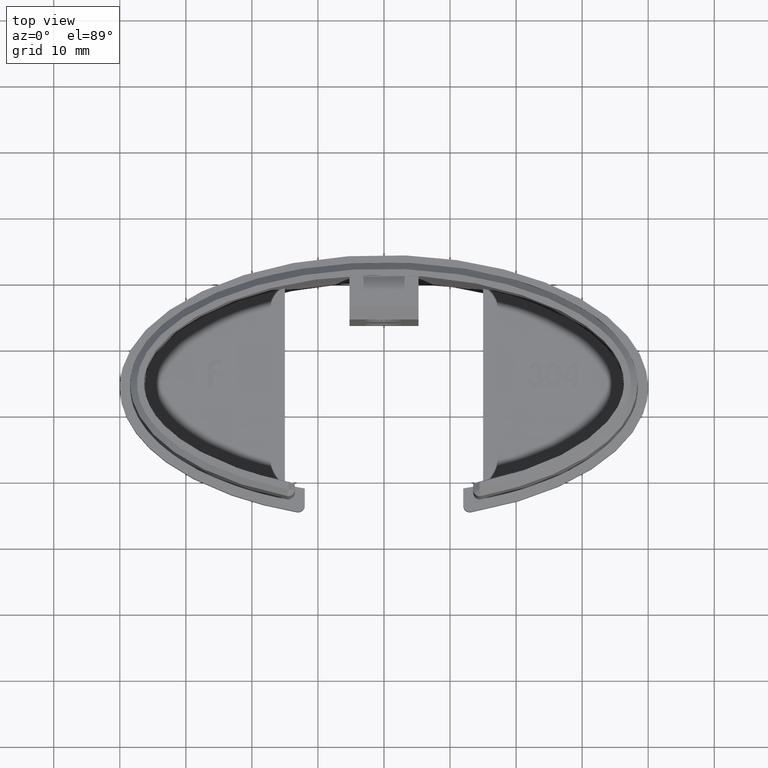
[diagram: clean part render]
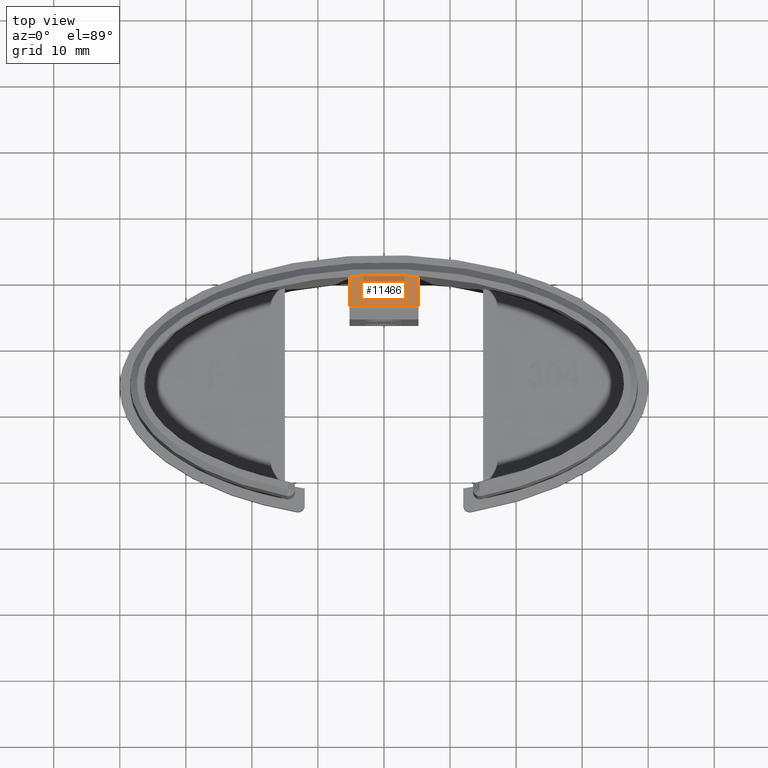
[diagram: same view with one face highlighted and labeled with its STEP entity id]
A machine part, top view. The second image highlights one B-rep face of the part: STEP entity #11466.
In plain terms, the highlighted planar face has unit normal (0, 0, 1).
Its self-contained STEP definition (entity closure, byte-faithful):
#399 = DIRECTION ( 'NONE',  ( 0.000000000000000000, 1.000000000000000000, 0.000000000000000000 ) ) ;
#1649 = CARTESIAN_POINT ( 'NONE',  ( 5.230000000000000426, 10.18042379626542271, 30.00000000000000355 ) ) ;
#1910 = CARTESIAN_POINT ( 'NONE',  ( 5.230000000000000426, 3.687380310361163538, 30.00000000000000355 ) ) ;
#3136 = VERTEX_POINT ( 'NONE', #5643 ) ;
#3905 = ORIENTED_EDGE ( 'NONE', *, *, #12612, .T. ) ;
#5643 = CARTESIAN_POINT ( 'NONE',  ( -5.230000000000000426, 5.687380310361164426, 30.00000000000000355 ) ) ;
#5904 = DIRECTION ( 'NONE',  ( 0.000000000000000000, 0.000000000000000000, 1.000000000000000000 ) ) ;
#6167 = FACE_OUTER_BOUND ( 'NONE', #12577, .T. ) ;
#6550 = LINE ( 'NONE', #18221, #20379 ) ;
#7456 = CARTESIAN_POINT ( 'NONE',  ( -1.062333814666471810E-09, 10.41693691579595082, 30.00000000000000711 ) ) ;
#7475 = ORIENTED_EDGE ( 'NONE', *, *, #23641, .T. ) ;
#7975 = DIRECTION ( 'NONE',  ( 0.000000000000000000, 1.000000000000000000, 0.000000000000000000 ) ) ;
#9713 = VERTEX_POINT ( 'NONE', #20210 ) ;
#9843 = LINE ( 'NONE', #22542, #10161 ) ;
#10161 = VECTOR ( 'NONE', #399, 1000.000000000000000 ) ;
#10755 = VERTEX_POINT ( 'NONE', #14633 ) ;
#11466 = ADVANCED_FACE ( 'NONE', ( #6167 ), #25867, .T. ) ;
#12151 = B_SPLINE_CURVE_WITH_KNOTS ( 'NONE', 3,
 ( #1649, #25616, #7456, #15400, #13430 ),
 .UNSPECIFIED., .F., .F.,
 ( 4, 1, 4 ),
 ( 1.430416743204769858, 1.570796326794896558, 1.711175910205102735 ),
 .UNSPECIFIED. ) ;
#12577 = EDGE_LOOP ( 'NONE', ( #15201, #7475, #3905, #21949 ) ) ;
#12612 = EDGE_CURVE ( 'NONE', #19802, #10755, #13643, .T. ) ;
#12844 = EDGE_CURVE ( 'NONE', #3136, #9713, #9843, .T. ) ;
#13430 = CARTESIAN_POINT ( 'NONE',  ( -5.230000000000000426, 10.18042379770467143, 30.00000000000000355 ) ) ;
#13643 = LINE ( 'NONE', #1910, #19945 ) ;
#13853 = CARTESIAN_POINT ( 'NONE',  ( 5.230000000000000426, 5.687380310361164426, 30.00000000000000355 ) ) ;
#13946 = AXIS2_PLACEMENT_3D ( 'NONE', #14032, #5904, #21977 ) ;
#14032 = CARTESIAN_POINT ( 'NONE',  ( -5.230000000000000426, 3.687380310361163538, 30.00000000000000355 ) ) ;
#14633 = CARTESIAN_POINT ( 'NONE',  ( 5.230000000000000426, 10.18042379626542271, 30.00000000000000355 ) ) ;
#15201 = ORIENTED_EDGE ( 'NONE', *, *, #12844, .F. ) ;
#15400 = CARTESIAN_POINT ( 'NONE',  ( -3.498714954047999814, 10.29782370528472057, 30.00000000000000711 ) ) ;
#18221 = CARTESIAN_POINT ( 'NONE',  ( -5.230000000000000426, 5.687380310361165314, 30.00000000000000355 ) ) ;
#19802 = VERTEX_POINT ( 'NONE', #13853 ) ;
#19945 = VECTOR ( 'NONE', #7975, 1000.000000000000000 ) ;
#20210 = CARTESIAN_POINT ( 'NONE',  ( -5.230000000000000426, 10.18042379770467143, 30.00000000000000355 ) ) ;
#20379 = VECTOR ( 'NONE', #24376, 1000.000000000000000 ) ;
#21949 = ORIENTED_EDGE ( 'NONE', *, *, #24042, .T. ) ;
#21977 = DIRECTION ( 'NONE',  ( 1.000000000000000000, 0.000000000000000000, -0.000000000000000000 ) ) ;
#22542 = CARTESIAN_POINT ( 'NONE',  ( -5.230000000000000426, 3.687380310361163538, 30.00000000000000355 ) ) ;
#23641 = EDGE_CURVE ( 'NONE', #3136, #19802, #6550, .T. ) ;
#24042 = EDGE_CURVE ( 'NONE', #10755, #9713, #12151, .T. ) ;
#24376 = DIRECTION ( 'NONE',  ( 1.000000000000000000, 0.000000000000000000, 0.000000000000000000 ) ) ;
#25616 = CARTESIAN_POINT ( 'NONE',  ( 3.498714951904132064, 10.29782370456803342, 30.00000000000000355 ) ) ;
#25867 = PLANE ( 'NONE',  #13946 ) ;